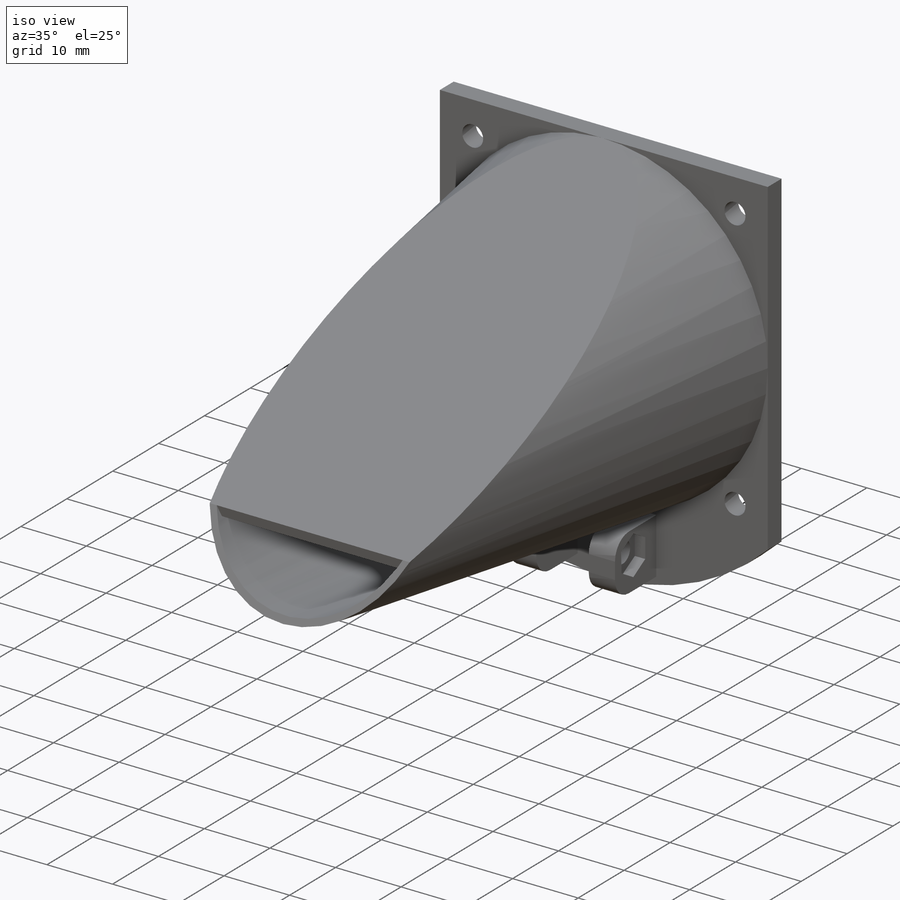
[diagram: iso view]
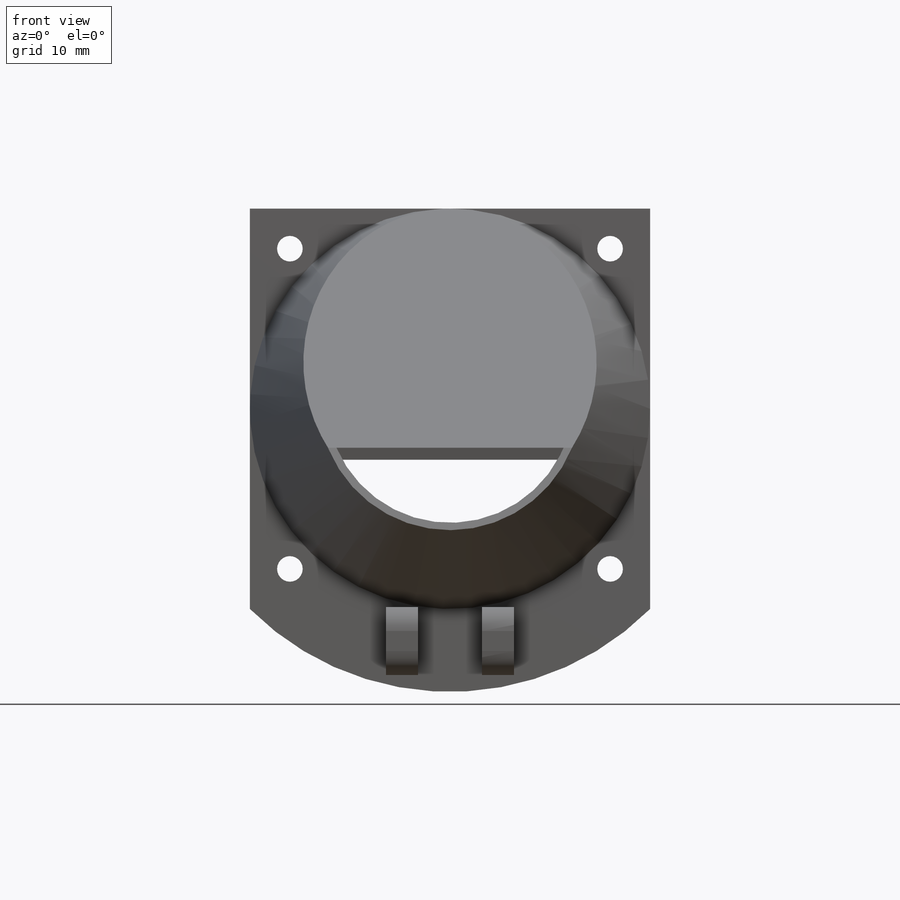
[diagram: front view]
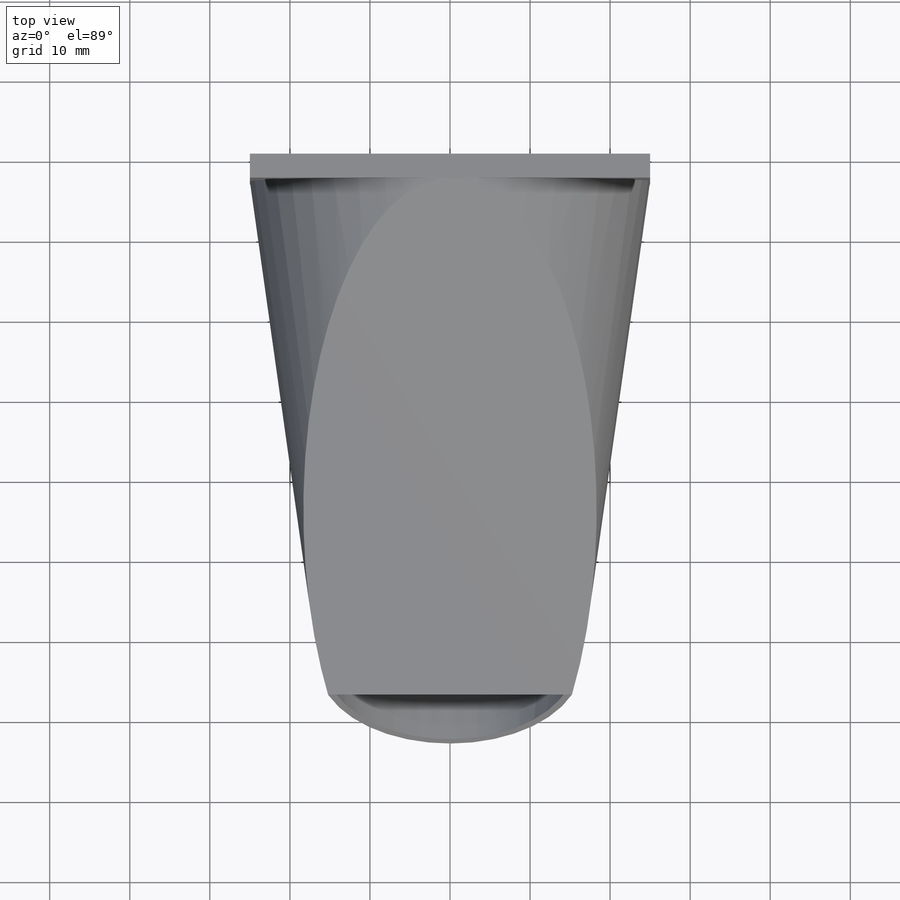
[diagram: top view]
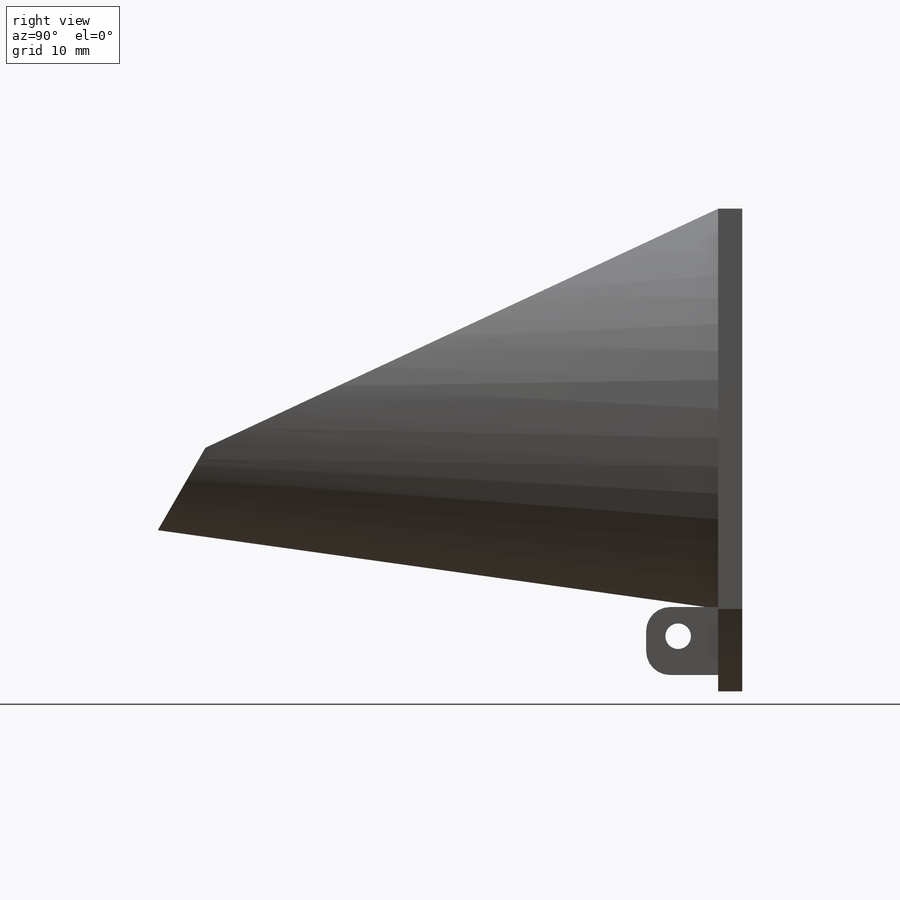
[diagram: right view]
SOLIDWORKS PART (.sldprt)
format: sldprt  version: not decoded by parser v0  size: 359,936 bytes
history: native  units: mm
features: sketch x13, plane x7, extrude x5, cut_extrude x4, material x1, fillet x1 (+8 scaffold rows collapsed)
feature tree (39):
  scaffold x8  (default folders/planes/origin — collapsed)
  material  "Material <sin especificar>"
  plane  "Alzado"
  plane  "Planta"
  plane  "Vista lateral"
  sketch  "Croquis1"  dims[c1.D1=3.2mm c1.D2=9.0mm c1.D4=3.2mm c1.D5=3.2mm c2.D4=50.0mm c2.D6=3.2mm c2.D7=3.2mm c2.D8=~68.874109mm c2.D10=25.0mm c2.D5=25.0mm c3.D4=48.0mm c3.D5=65.0mm c3.D7=65.0mm c3.D11=~35.355339mm c4.D4=28.0mm c4.D5=~19.595918mm c5.D5=90.0deg c5.D6=~39.59798mm c6.D5=40.0mm c6.D6=20.0mm c6.D7=20.0mm c6.D8=16.0mm c6.D9=12.0mm c6.D10=29.0mm c6.D11=~7.496277mm c6.D12=~18.124677mm c7.D11=~7.189965mm c7.D12=~3.331536mm c8.D11=3.0mm c8.D12=~7.265765mm c8.D5=50.0mm c8.D7=50.0mm c8.D9=25.0mm c8.D10=25.0mm c9.D11=50.0mm c9.D2=2.0 c9.D3=2.0]
  extrude  "Saliente-Extruir1"  Depth=3mm
  sketch  "Croquis2"  dims[c1.D1=~7.328359mm c1.D2=~2.735594mm c2.D1=4.0mm c2.D2=~7.178672mm c2.D3=~3.201567mm c3.D2=4.0mm c3.D3=8.5mm c3.D4=8.5mm c3.D5=8.0mm]
  extrude  "Saliente-Extruir2"  Depth=9mm
  sketch  "Croquis3"  dims[c1.D1=3.2mm c1.D2=3.2mm c1.D3=3.2mm c2.D2=3.65mm c2.D3=5.0mm]
  cut_extrude  "Cortar-Extruir1"  [1 undecoded]
  sketch  "Croquis4"  dims[D1=6.0mm]
  sketch  "Croquis5"
  cut_extrude  "Cortar-Extruir2"  Depth=1.6mm
  fillet  "Redondeo1"  Radius=3mm
  sketch  "Croquis11"  dims[c1.D1=~42.159636mm c2.D1=30.0deg c3.D1=~44.422763mm c4.D1=30.0deg]
  plane  "Plano2"  Offset=40mm
  sketch  "Croquis12"
  plane  "Plano3"
  extrude  "Saliente-Extruir3"  [1 undecoded]
  cut_extrude  "Cortar-Extruir3"  [1 undecoded]
  sketch  "Croquis5<3>"  dims[D1=70.0mm D3=8.0deg]
  sketch  "Croquis6"  dims[c1.D1=~14.365578mm c2.D1=60.0deg c3.D1=~79.113669mm c4.D1=25.0deg]
  plane  "Plano1"
  sketch  "Croquis9"
  cut_extrude  "Cortar-Extruir4"  Depth=26mm
  sketch  "Croquis10"  dims[D1=0.0mm]
  extrude  "Saliente-Extruir4"  Depth=1.5mm
  plane  "Plano4"  Offset=20mm
  sketch  "Croquis15"
  extrude  "Saliente-Extruir5"  Depth=4mm
  sketch  "Croquis16"  dims[D1=0.0mm]
decode coverage: 16 of 23 modeling features carry decoded parameters
note: ~ marks probable driven/reference dimensions
note: 3 parameter values undecoded
summary: no parameter record found for 3 features
note: suppression state not decoded; provenance and decode notes live in map.json
